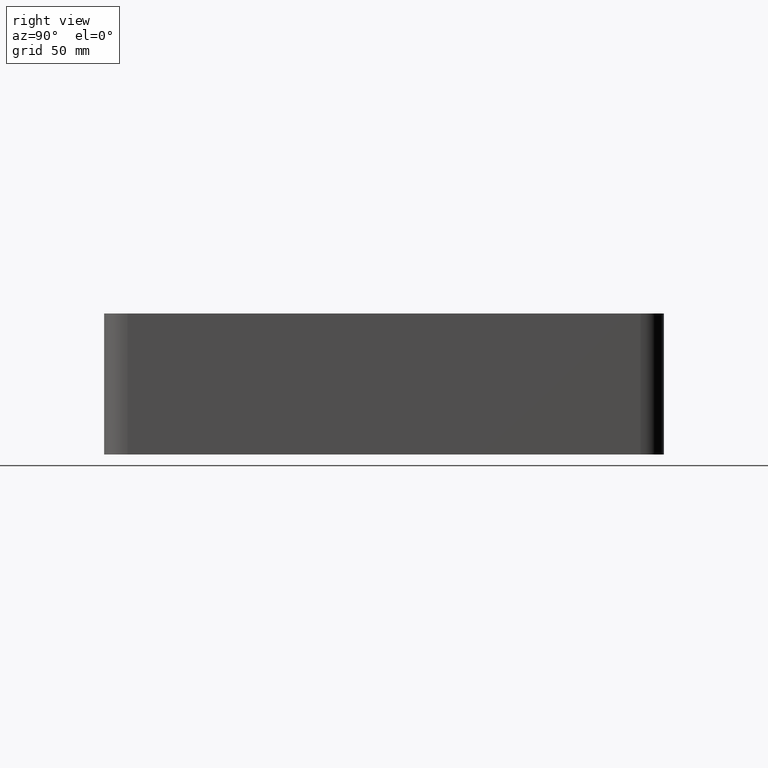
[diagram: clean part render]
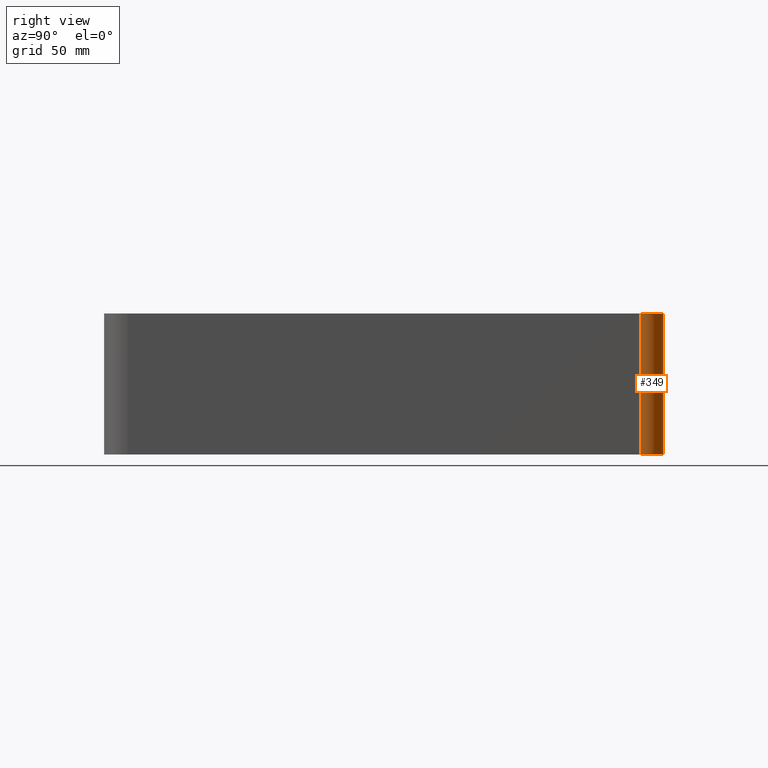
[diagram: same view with one face highlighted and labeled with its STEP entity id]
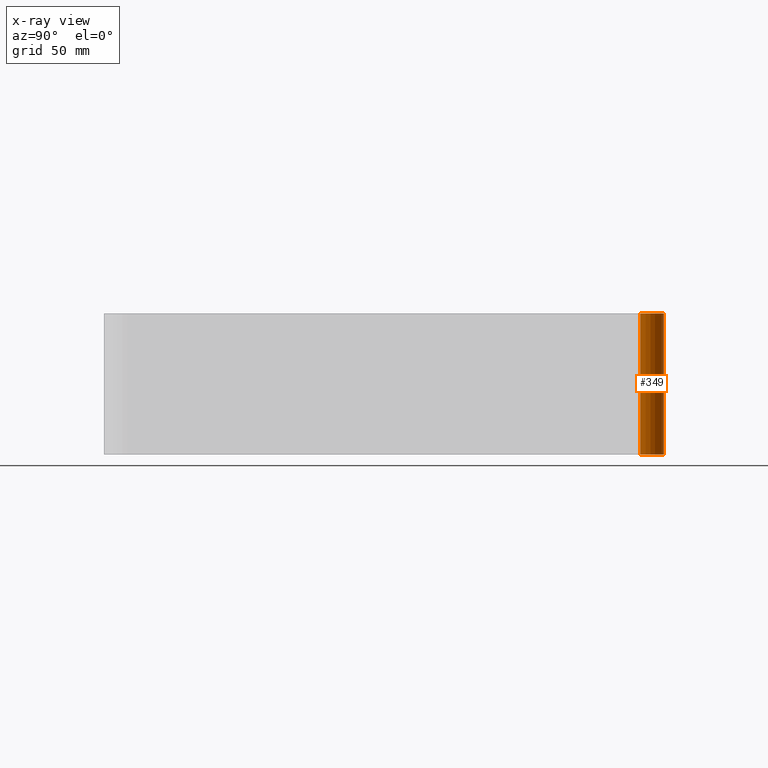
[diagram: x-ray of the same camera — body ghosted, the highlighted face saturated]
A machine part, right view. The second image highlights one B-rep face of the part: STEP entity #349.
The next image is the same camera in x-ray: the body ghosted, the highlighted face saturated — about 0% of this face is hidden behind the body in this view.
In plain terms, the highlighted cylindrical surface (edge-blend (fillet) strip) has radius 10 mm, axis along (0, 0, -1).
Its self-contained STEP definition (entity closure, byte-faithful):
#19=CIRCLE('',#388,10.);
#20=CIRCLE('',#389,10.);
#27=CYLINDRICAL_SURFACE('',#387,10.);
#39=FACE_OUTER_BOUND('',#57,.T.);
#57=EDGE_LOOP('',(#263,#264,#265,#266));
#95=LINE('',#553,#135);
#96=LINE('',#556,#136);
#135=VECTOR('',#451,10.);
#136=VECTOR('',#454,10.);
#167=VERTEX_POINT('',#549);
#168=VERTEX_POINT('',#550);
#169=VERTEX_POINT('',#552);
#170=VERTEX_POINT('',#554);
#207=EDGE_CURVE('',#167,#168,#19,.T.);
#208=EDGE_CURVE('',#168,#169,#95,.T.);
#209=EDGE_CURVE('',#169,#170,#20,.T.);
#210=EDGE_CURVE('',#170,#167,#96,.T.);
#263=ORIENTED_EDGE('',*,*,#207,.T.);
#264=ORIENTED_EDGE('',*,*,#208,.T.);
#265=ORIENTED_EDGE('',*,*,#209,.T.);
#266=ORIENTED_EDGE('',*,*,#210,.T.);
#349=ADVANCED_FACE('',(#39),#27,.T.);
#387=AXIS2_PLACEMENT_3D('',#548,#447,#448);
#388=AXIS2_PLACEMENT_3D('',#551,#449,#450);
#389=AXIS2_PLACEMENT_3D('',#555,#452,#453);
#447=DIRECTION('center_axis',(0.,0.,-1.));
#448=DIRECTION('ref_axis',(0.707106781186547,0.707106781186547,0.));
#449=DIRECTION('center_axis',(0.,0.,1.));
#450=DIRECTION('ref_axis',(0.707106781186547,0.707106781186547,0.));
#451=DIRECTION('',(0.,0.,1.));
#452=DIRECTION('center_axis',(0.,0.,-1.));
#453=DIRECTION('ref_axis',(0.707106781186547,0.707106781186547,0.));
#454=DIRECTION('',(0.,0.,-1.));
#548=CARTESIAN_POINT('Origin',(85.5,109.,0.));
#549=CARTESIAN_POINT('',(95.5,109.,-60.));
#550=CARTESIAN_POINT('',(85.5,119.,-60.));
#551=CARTESIAN_POINT('Origin',(85.5,109.,-60.));
#552=CARTESIAN_POINT('',(85.5,119.,0.));
#553=CARTESIAN_POINT('',(85.5,119.,0.));
#554=CARTESIAN_POINT('',(95.5,109.,0.));
#555=CARTESIAN_POINT('Origin',(85.5,109.,0.));
#556=CARTESIAN_POINT('',(95.5,109.,0.));